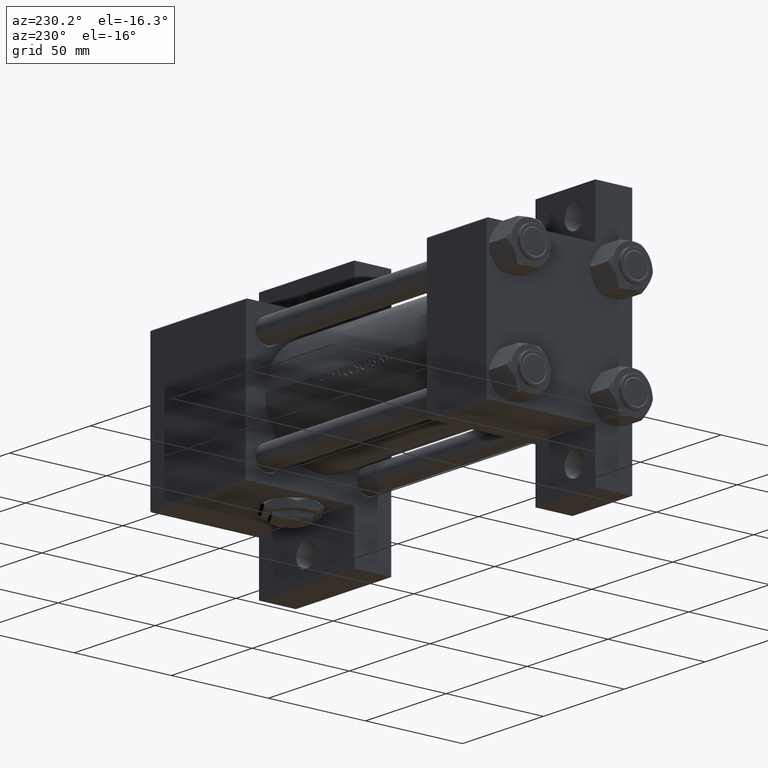
[diagram: clean part render]
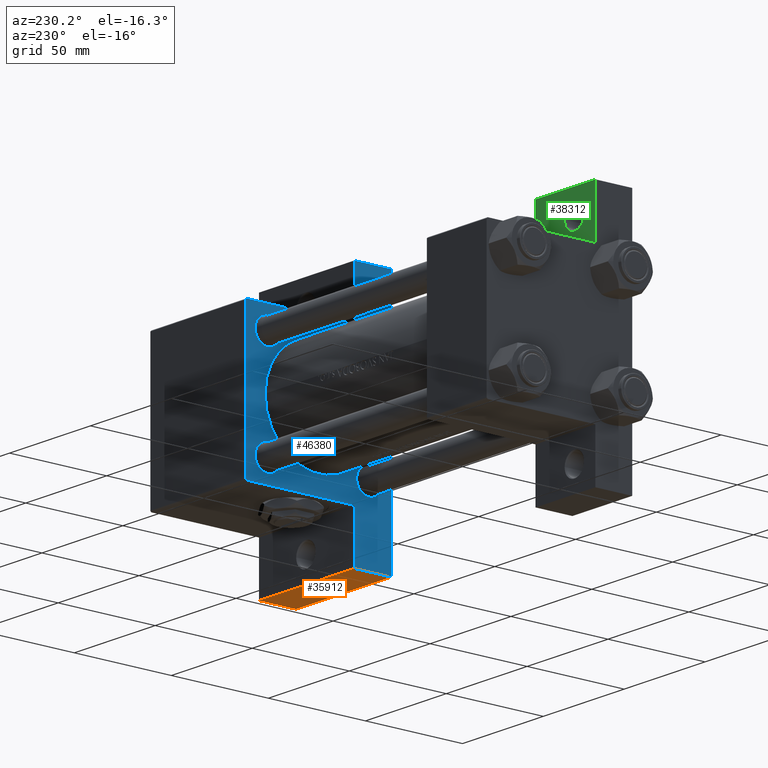
[diagram: same view with three faces highlighted in distinct colors, each labeled with its STEP entity id]
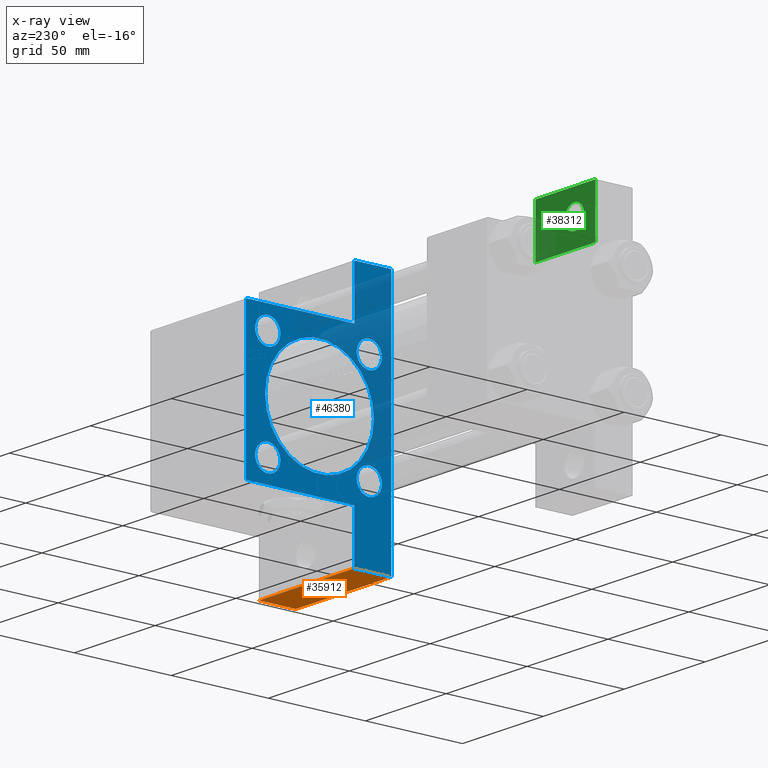
[diagram: x-ray of the same camera — body ghosted, the three highlighted faces saturated]
A machine part, auxiliary view with three faces highlighted in distinct colors.
The next image is the same camera in x-ray (body ghosted, the three faces saturated) — at least one of them is partly hidden behind the body in this view.
Their STEP definitions:

[orange] entity #35912 — the highlighted planar face has unit normal (-0, 0, -1).
#4341 = CARTESIAN_POINT ( 'NONE',  ( 149.0000000000000284, 63.49999999999997158, -37.50000000000000000 ) ) ;
#5514 = VERTEX_POINT ( 'NONE', #48262 ) ;
#8562 = VECTOR ( 'NONE', #25343, 1000.000000000000000 ) ;
#9146 = ORIENTED_EDGE ( 'NONE', *, *, #9825, .T. ) ;
#9825 = EDGE_CURVE ( 'NONE', #5514, #40161, #46608, .T. ) ;
#10914 = EDGE_LOOP ( 'NONE', ( #11044, #13359, #38487, #9146 ) ) ;
#11044 = ORIENTED_EDGE ( 'NONE', *, *, #47010, .F. ) ;
#13359 = ORIENTED_EDGE ( 'NONE', *, *, #39888, .F. ) ;
#13534 = VECTOR ( 'NONE', #40833, 1000.000000000000000 ) ;
#13885 = LINE ( 'NONE', #29067, #8562 ) ;
#15885 = AXIS2_PLACEMENT_3D ( 'NONE', #27196, #16479, #42873 ) ;
#16445 = VERTEX_POINT ( 'NONE', #35984 ) ;
#16479 = DIRECTION ( 'NONE',  ( -4.704334850106593822E-16, 1.000000000000000000, 0.000000000000000000 ) ) ;
#18154 = CARTESIAN_POINT ( 'NONE',  ( 149.0000000000000284, 63.49999999999997158, -18.50000000000000000 ) ) ;
#19268 = DIRECTION ( 'NONE',  ( 1.000000000000000000, 4.704334850106593822E-16, 0.000000000000000000 ) ) ;
#21293 = VERTEX_POINT ( 'NONE', #4341 ) ;
#22122 = VECTOR ( 'NONE', #27429, 1000.000000000000000 ) ;
#23945 = PLANE ( 'NONE',  #15885 ) ;
#25343 = DIRECTION ( 'NONE',  ( 1.000000000000000000, 4.704334850106593822E-16, 0.000000000000000000 ) ) ;
#27196 = CARTESIAN_POINT ( 'NONE',  ( 149.0000000000000284, 63.49999999999997158, -18.50000000000000000 ) ) ;
#27429 = DIRECTION ( 'NONE',  ( 0.000000000000000000, 0.000000000000000000, -1.000000000000000000 ) ) ;
#29067 = CARTESIAN_POINT ( 'NONE',  ( 149.0000000000000284, 63.49999999999997158, -18.50000000000000000 ) ) ;
#29984 = EDGE_CURVE ( 'NONE', #16445, #5514, #13885, .T. ) ;
#30936 = FACE_OUTER_BOUND ( 'NONE', #10914, .T. ) ;
#33712 = LINE ( 'NONE', #41186, #48795 ) ;
#35912 = ADVANCED_FACE ( 'NONE', ( #30936 ), #23945, .T. ) ;
#35984 = CARTESIAN_POINT ( 'NONE',  ( 149.0000000000000284, 63.49999999999997158, -18.50000000000000000 ) ) ;
#37782 = CARTESIAN_POINT ( 'NONE',  ( 208.0000000000000568, 63.50000000000000000, -37.50000000000000000 ) ) ;
#38487 = ORIENTED_EDGE ( 'NONE', *, *, #29984, .T. ) ;
#39611 = CARTESIAN_POINT ( 'NONE',  ( 208.0000000000000568, 63.50000000000000000, -18.50000000000000000 ) ) ;
#39888 = EDGE_CURVE ( 'NONE', #16445, #21293, #44561, .T. ) ;
#40161 = VERTEX_POINT ( 'NONE', #37782 ) ;
#40833 = DIRECTION ( 'NONE',  ( 0.000000000000000000, 0.000000000000000000, -1.000000000000000000 ) ) ;
#41186 = CARTESIAN_POINT ( 'NONE',  ( 149.0000000000000284, 63.49999999999997158, -37.50000000000000000 ) ) ;
#42873 = DIRECTION ( 'NONE',  ( -1.000000000000000000, -4.704334850106593822E-16, 0.000000000000000000 ) ) ;
#44561 = LINE ( 'NONE', #18154, #13534 ) ;
#46608 = LINE ( 'NONE', #39611, #22122 ) ;
#47010 = EDGE_CURVE ( 'NONE', #21293, #40161, #33712, .T. ) ;
#48262 = CARTESIAN_POINT ( 'NONE',  ( 208.0000000000000568, 63.50000000000000000, -18.50000000000000000 ) ) ;
#48795 = VECTOR ( 'NONE', #19268, 1000.000000000000000 ) ;

[blue] entity #46380 — the highlighted planar face has unit normal (-1, 0, 0).
#112 = DIRECTION ( 'NONE',  ( 0.000000000000000000, 0.000000000000000000, -1.000000000000000000 ) ) ;
#359 = CARTESIAN_POINT ( 'NONE',  ( 149.0000000000000000, 37.50000000000000000, 36.99999999999999289 ) ) ;
#525 = AXIS2_PLACEMENT_3D ( 'NONE', #3155, #18592, #18344 ) ;
#754 = ORIENTED_EDGE ( 'NONE', *, *, #12640, .T. ) ;
#1087 = DIRECTION ( 'NONE',  ( 0.000000000000000000, 0.000000000000000000, -1.000000000000000000 ) ) ;
#2093 = ORIENTED_EDGE ( 'NONE', *, *, #31912, .T. ) ;
#2185 = AXIS2_PLACEMENT_3D ( 'NONE', #7061, #6813, #22017 ) ;
#2479 = ORIENTED_EDGE ( 'NONE', *, *, #25837, .T. ) ;
#2693 = DIRECTION ( 'NONE',  ( 1.067522139062651657E-15, 1.000000000000000000, -0.000000000000000000 ) ) ;
#3155 = CARTESIAN_POINT ( 'NONE',  ( 149.0000000000000000, -26.14999999999999147, 26.15000000000000924 ) ) ;
#4090 = CIRCLE ( 'NONE', #14406, 6.500000000000008882 ) ;
#4117 = ORIENTED_EDGE ( 'NONE', *, *, #20951, .F. ) ;
#4187 = DIRECTION ( 'NONE',  ( 0.000000000000000000, 0.000000000000000000, 1.000000000000000000 ) ) ;
#4324 = DIRECTION ( 'NONE',  ( 1.000000000000000000, 0.000000000000000000, 0.000000000000000000 ) ) ;
#4341 = CARTESIAN_POINT ( 'NONE',  ( 149.0000000000000284, 63.49999999999997158, -37.50000000000000000 ) ) ;
#4426 = FACE_BOUND ( 'NONE', #15280, .T. ) ;
#4962 = EDGE_CURVE ( 'NONE', #28140, #40892, #9372, .T. ) ;
#5438 = CARTESIAN_POINT ( 'NONE',  ( 149.0000000000000000, -63.50000000000000000, -37.50000000000000000 ) ) ;
#5884 = EDGE_CURVE ( 'NONE', #7485, #12511, #46782, .T. ) ;
#6051 = DIRECTION ( 'NONE',  ( 0.000000000000000000, -9.251858538542972814E-17, -1.000000000000000000 ) ) ;
#6449 = EDGE_LOOP ( 'NONE', ( #10567, #2093 ) ) ;
#6750 = ORIENTED_EDGE ( 'NONE', *, *, #18879, .T. ) ;
#6813 = DIRECTION ( 'NONE',  ( 1.000000000000000000, 0.000000000000000000, -0.000000000000000000 ) ) ;
#6905 = DIRECTION ( 'NONE',  ( -0.000000000000000000, 0.7071067811865671127, 0.7071067811865279218 ) ) ;
#7061 = CARTESIAN_POINT ( 'NONE',  ( 149.0000000000000000, 26.14999999999999858, 26.15000000000000213 ) ) ;
#7304 = VERTEX_POINT ( 'NONE', #17937 ) ;
#7345 = ORIENTED_EDGE ( 'NONE', *, *, #7746, .T. ) ;
#7372 = AXIS2_PLACEMENT_3D ( 'NONE', #31094, #7930, #4187 ) ;
#7434 = FACE_BOUND ( 'NONE', #18503, .T. ) ;
#7485 = VERTEX_POINT ( 'NONE', #21922 ) ;
#7580 = CARTESIAN_POINT ( 'NONE',  ( 149.0000000000000000, 37.50000000000000000, -18.50000000000000355 ) ) ;
#7592 = LINE ( 'NONE', #11582, #29479 ) ;
#7746 = EDGE_CURVE ( 'NONE', #33460, #48551, #48761, .T. ) ;
#7930 = DIRECTION ( 'NONE',  ( -1.000000000000000000, -0.000000000000000000, 0.000000000000000000 ) ) ;
#7949 = CIRCLE ( 'NONE', #14317, 28.00000000000000000 ) ;
#8236 = EDGE_CURVE ( 'NONE', #12511, #7485, #47523, .T. ) ;
#8699 = LINE ( 'NONE', #39082, #38302 ) ;
#9372 = CIRCLE ( 'NONE', #45951, 6.500000000000008882 ) ;
#9557 = LINE ( 'NONE', #29453, #28854 ) ;
#10363 = ORIENTED_EDGE ( 'NONE', *, *, #41971, .T. ) ;
#10410 = DIRECTION ( 'NONE',  ( 1.000000000000000000, 0.000000000000000000, 0.000000000000000000 ) ) ;
#10567 = ORIENTED_EDGE ( 'NONE', *, *, #40472, .T. ) ;
#10838 = DIRECTION ( 'NONE',  ( 0.000000000000000000, 1.000000000000000000, 0.000000000000000000 ) ) ;
#11582 = CARTESIAN_POINT ( 'NONE',  ( 149.0000000000000000, -63.50000000000000000, -18.50000000000000000 ) ) ;
#11653 = DIRECTION ( 'NONE',  ( 1.000000000000000000, 0.000000000000000000, -0.000000000000000000 ) ) ;
#12361 = CARTESIAN_POINT ( 'NONE',  ( 149.0000000000000000, -37.00000000000000000, 37.49999999999997868 ) ) ;
#12467 = DIRECTION ( 'NONE',  ( 0.000000000000000000, 0.000000000000000000, 1.000000000000000000 ) ) ;
#12511 = VERTEX_POINT ( 'NONE', #39835 ) ;
#12640 = EDGE_CURVE ( 'NONE', #46322, #21404, #30160, .T. ) ;
#13394 = CIRCLE ( 'NONE', #27721, 28.00000000000000000 ) ;
#13534 = VECTOR ( 'NONE', #40833, 1000.000000000000000 ) ;
#13865 = VERTEX_POINT ( 'NONE', #40921 ) ;
#13988 = EDGE_CURVE ( 'NONE', #33463, #16445, #40549, .T. ) ;
#14280 = DIRECTION ( 'NONE',  ( 1.000000000000000000, 0.000000000000000000, -0.000000000000000000 ) ) ;
#14317 = AXIS2_PLACEMENT_3D ( 'NONE', #15790, #4324, #1087 ) ;
#14406 = AXIS2_PLACEMENT_3D ( 'NONE', #27690, #23458, #20218 ) ;
#15280 = EDGE_LOOP ( 'NONE', ( #16748, #22757 ) ) ;
#15400 = CARTESIAN_POINT ( 'NONE',  ( 149.0000000000000000, -26.14999999999999147, 26.15000000000000924 ) ) ;
#15438 = DIRECTION ( 'NONE',  ( 0.000000000000000000, 0.000000000000000000, -1.000000000000000000 ) ) ;
#15450 = EDGE_CURVE ( 'NONE', #48117, #39407, #7592, .T. ) ;
#15790 = CARTESIAN_POINT ( 'NONE',  ( 149.0000000000000000, 0.000000000000000000, -0.5000000000000004441 ) ) ;
#16445 = VERTEX_POINT ( 'NONE', #35984 ) ;
#16748 = ORIENTED_EDGE ( 'NONE', *, *, #4962, .T. ) ;
#16755 = EDGE_LOOP ( 'NONE', ( #44194, #46454, #10363, #44441, #22688, #44671, #4117, #48954, #43200, #7345 ) ) ;
#17039 = DIRECTION ( 'NONE',  ( 0.000000000000000000, 0.7071067811865279218, -0.7071067811865671127 ) ) ;
#17856 = CARTESIAN_POINT ( 'NONE',  ( 149.0000000000000000, 37.50000000000000000, 37.49999999999999289 ) ) ;
#17937 = CARTESIAN_POINT ( 'NONE',  ( 149.0000000000000000, 0.000000000000000000, 27.50000000000000000 ) ) ;
#18009 = CIRCLE ( 'NONE', #525, 6.500000000000008882 ) ;
#18154 = CARTESIAN_POINT ( 'NONE',  ( 149.0000000000000284, 63.49999999999997158, -18.50000000000000000 ) ) ;
#18287 = DIRECTION ( 'NONE',  ( 1.000000000000000000, 0.000000000000000000, -0.000000000000000000 ) ) ;
#18327 = DIRECTION ( 'NONE',  ( 0.000000000000000000, 0.000000000000000000, -1.000000000000000000 ) ) ;
#18344 = DIRECTION ( 'NONE',  ( 0.000000000000000000, 0.000000000000000000, 1.000000000000000000 ) ) ;
#18503 = EDGE_LOOP ( 'NONE', ( #40142, #24035 ) ) ;
#18592 = DIRECTION ( 'NONE',  ( 1.000000000000000000, 0.000000000000000000, -0.000000000000000000 ) ) ;
#18879 = EDGE_CURVE ( 'NONE', #31321, #38375, #31200, .T. ) ;
#18922 = EDGE_CURVE ( 'NONE', #24790, #20282, #48157, .T. ) ;
#19025 = AXIS2_PLACEMENT_3D ( 'NONE', #15400, #11653, #33576 ) ;
#19545 = CIRCLE ( 'NONE', #45774, 6.500000000000008882 ) ;
#19929 = DIRECTION ( 'NONE',  ( 0.000000000000000000, -1.000000000000000000, 0.000000000000000000 ) ) ;
#20218 = DIRECTION ( 'NONE',  ( 0.000000000000000000, 0.000000000000000000, 1.000000000000000000 ) ) ;
#20282 = VERTEX_POINT ( 'NONE', #359 ) ;
#20642 = DIRECTION ( 'NONE',  ( 0.000000000000000000, -1.000000000000000000, -1.850371707708594316E-16 ) ) ;
#20951 = EDGE_CURVE ( 'NONE', #48117, #33138, #41584, .T. ) ;
#21001 = CARTESIAN_POINT ( 'NONE',  ( 149.0000000000000000, 26.14999999999999858, -19.64999999999999503 ) ) ;
#21083 = EDGE_CURVE ( 'NONE', #24790, #48551, #8699, .T. ) ;
#21293 = VERTEX_POINT ( 'NONE', #4341 ) ;
#21404 = VERTEX_POINT ( 'NONE', #34177 ) ;
#21579 = EDGE_CURVE ( 'NONE', #40892, #28140, #4090, .T. ) ;
#21922 = CARTESIAN_POINT ( 'NONE',  ( 149.0000000000000000, 26.14999999999999858, 19.65000000000000568 ) ) ;
#22017 = DIRECTION ( 'NONE',  ( 0.000000000000000000, 0.000000000000000000, 1.000000000000000000 ) ) ;
#22393 = DIRECTION ( 'NONE',  ( 1.000000000000000000, 0.000000000000000000, -0.000000000000000000 ) ) ;
#22634 = FACE_BOUND ( 'NONE', #6449, .T. ) ;
#22688 = ORIENTED_EDGE ( 'NONE', *, *, #39888, .T. ) ;
#22757 = ORIENTED_EDGE ( 'NONE', *, *, #21579, .T. ) ;
#23023 = DIRECTION ( 'NONE',  ( 0.000000000000000000, 0.000000000000000000, 1.000000000000000000 ) ) ;
#23274 = VECTOR ( 'NONE', #19929, 1000.000000000000000 ) ;
#23458 = DIRECTION ( 'NONE',  ( 1.000000000000000000, 0.000000000000000000, -0.000000000000000000 ) ) ;
#23513 = CARTESIAN_POINT ( 'NONE',  ( 149.0000000000000000, 26.14999999999999858, -26.15000000000000213 ) ) ;
#24035 = ORIENTED_EDGE ( 'NONE', *, *, #5884, .T. ) ;
#24761 = VECTOR ( 'NONE', #15438, 1000.000000000000000 ) ;
#24790 = VERTEX_POINT ( 'NONE', #31465 ) ;
#25411 = CARTESIAN_POINT ( 'NONE',  ( 149.0000000000000000, -63.50000000000000000, -18.50000000000000000 ) ) ;
#25489 = CARTESIAN_POINT ( 'NONE',  ( 149.0000000000000000, 37.25000000000103739, 37.24999999999896971 ) ) ;
#25837 = EDGE_CURVE ( 'NONE', #38375, #31321, #19545, .T. ) ;
#25849 = CARTESIAN_POINT ( 'NONE',  ( 149.0000000000000000, -37.24999999999896261, 37.25000000000102318 ) ) ;
#27073 = CARTESIAN_POINT ( 'NONE',  ( 149.0000000000000000, -26.14999999999999147, -32.65000000000002700 ) ) ;
#27519 = EDGE_CURVE ( 'NONE', #21404, #46322, #18009, .T. ) ;
#27661 = DIRECTION ( 'NONE',  ( 1.000000000000000000, 0.000000000000000000, -0.000000000000000000 ) ) ;
#27690 = CARTESIAN_POINT ( 'NONE',  ( 149.0000000000000000, -26.14999999999999147, -26.15000000000000924 ) ) ;
#27721 = AXIS2_PLACEMENT_3D ( 'NONE', #38217, #10410, #112 ) ;
#28140 = VERTEX_POINT ( 'NONE', #47312 ) ;
#28854 = VECTOR ( 'NONE', #6051, 1000.000000000000000 ) ;
#29238 = VECTOR ( 'NONE', #6905, 1000.000000000000000 ) ;
#29453 = CARTESIAN_POINT ( 'NONE',  ( 149.0000000000000000, -37.50000000000000000, 37.49999999999997868 ) ) ;
#29479 = VECTOR ( 'NONE', #10838, 1000.000000000000000 ) ;
#29484 = VECTOR ( 'NONE', #18327, 1000.000000000000000 ) ;
#29979 = ORIENTED_EDGE ( 'NONE', *, *, #27519, .T. ) ;
#30002 = CARTESIAN_POINT ( 'NONE',  ( 149.0000000000000000, -37.50000000000000000, 37.00000000000000711 ) ) ;
#30160 = CIRCLE ( 'NONE', #19025, 6.500000000000008882 ) ;
#30603 = DIRECTION ( 'NONE',  ( 0.000000000000000000, 0.000000000000000000, 1.000000000000000000 ) ) ;
#31094 = CARTESIAN_POINT ( 'NONE',  ( 149.0000000000000000, 0.000000000000000000, 0.000000000000000000 ) ) ;
#31200 = CIRCLE ( 'NONE', #43925, 6.500000000000008882 ) ;
#31321 = VERTEX_POINT ( 'NONE', #21001 ) ;
#31465 = CARTESIAN_POINT ( 'NONE',  ( 149.0000000000000000, 37.00000000000002842, 37.49999999999999289 ) ) ;
#31912 = EDGE_CURVE ( 'NONE', #13865, #7304, #13394, .T. ) ;
#33138 = VERTEX_POINT ( 'NONE', #5438 ) ;
#33460 = VERTEX_POINT ( 'NONE', #30002 ) ;
#33463 = VERTEX_POINT ( 'NONE', #7580 ) ;
#33576 = DIRECTION ( 'NONE',  ( 0.000000000000000000, 0.000000000000000000, 1.000000000000000000 ) ) ;
#34177 = CARTESIAN_POINT ( 'NONE',  ( 149.0000000000000000, -26.14999999999999147, 32.65000000000001990 ) ) ;
#34379 = LINE ( 'NONE', #38611, #23274 ) ;
#34850 = CARTESIAN_POINT ( 'NONE',  ( 149.0000000000000000, -63.50000000000000000, -18.50000000000000000 ) ) ;
#35076 = FACE_BOUND ( 'NONE', #43801, .T. ) ;
#35984 = CARTESIAN_POINT ( 'NONE',  ( 149.0000000000000284, 63.49999999999997158, -18.50000000000000000 ) ) ;
#36329 = CARTESIAN_POINT ( 'NONE',  ( 149.0000000000000284, 63.49999999999997158, -18.50000000000000000 ) ) ;
#36438 = AXIS2_PLACEMENT_3D ( 'NONE', #41699, #18287, #23023 ) ;
#36796 = LINE ( 'NONE', #17856, #29484 ) ;
#38135 = CARTESIAN_POINT ( 'NONE',  ( 149.0000000000000000, 26.14999999999999858, -26.15000000000000213 ) ) ;
#38217 = CARTESIAN_POINT ( 'NONE',  ( 149.0000000000000000, 0.000000000000000000, -0.5000000000000004441 ) ) ;
#38302 = VECTOR ( 'NONE', #20642, 1000.000000000000000 ) ;
#38375 = VERTEX_POINT ( 'NONE', #43017 ) ;
#38611 = CARTESIAN_POINT ( 'NONE',  ( 149.0000000000000000, 37.50000000000000000, -37.50000000000000000 ) ) ;
#38805 = FACE_OUTER_BOUND ( 'NONE', #16755, .T. ) ;
#39082 = CARTESIAN_POINT ( 'NONE',  ( 149.0000000000000000, 37.50000000000000000, 37.49999999999999289 ) ) ;
#39407 = VERTEX_POINT ( 'NONE', #45724 ) ;
#39835 = CARTESIAN_POINT ( 'NONE',  ( 149.0000000000000000, 26.14999999999999858, 32.65000000000000568 ) ) ;
#39888 = EDGE_CURVE ( 'NONE', #16445, #21293, #44561, .T. ) ;
#40142 = ORIENTED_EDGE ( 'NONE', *, *, #8236, .T. ) ;
#40431 = DIRECTION ( 'NONE',  ( 0.000000000000000000, 0.000000000000000000, 1.000000000000000000 ) ) ;
#40472 = EDGE_CURVE ( 'NONE', #7304, #13865, #7949, .T. ) ;
#40549 = LINE ( 'NONE', #36329, #44523 ) ;
#40833 = DIRECTION ( 'NONE',  ( 0.000000000000000000, 0.000000000000000000, -1.000000000000000000 ) ) ;
#40892 = VERTEX_POINT ( 'NONE', #27073 ) ;
#40921 = CARTESIAN_POINT ( 'NONE',  ( 149.0000000000000000, 3.429011037612589276E-15, -28.50000000000000000 ) ) ;
#41055 = CARTESIAN_POINT ( 'NONE',  ( 149.0000000000000000, -26.14999999999999147, 19.65000000000000213 ) ) ;
#41584 = LINE ( 'NONE', #34850, #24761 ) ;
#41699 = CARTESIAN_POINT ( 'NONE',  ( 149.0000000000000000, 26.14999999999999858, 26.15000000000000213 ) ) ;
#41799 = CARTESIAN_POINT ( 'NONE',  ( 149.0000000000000000, -26.14999999999999147, -26.15000000000000924 ) ) ;
#41971 = EDGE_CURVE ( 'NONE', #20282, #33463, #36796, .T. ) ;
#42299 = FACE_BOUND ( 'NONE', #43010, .T. ) ;
#43010 = EDGE_LOOP ( 'NONE', ( #6750, #2479 ) ) ;
#43017 = CARTESIAN_POINT ( 'NONE',  ( 149.0000000000000000, 26.14999999999999858, -32.65000000000001279 ) ) ;
#43107 = VECTOR ( 'NONE', #17039, 1000.000000000000000 ) ;
#43200 = ORIENTED_EDGE ( 'NONE', *, *, #48911, .F. ) ;
#43801 = EDGE_LOOP ( 'NONE', ( #29979, #754 ) ) ;
#43925 = AXIS2_PLACEMENT_3D ( 'NONE', #23513, #14280, #40431 ) ;
#44194 = ORIENTED_EDGE ( 'NONE', *, *, #21083, .F. ) ;
#44441 = ORIENTED_EDGE ( 'NONE', *, *, #13988, .T. ) ;
#44523 = VECTOR ( 'NONE', #2693, 1000.000000000000000 ) ;
#44561 = LINE ( 'NONE', #18154, #13534 ) ;
#44671 = ORIENTED_EDGE ( 'NONE', *, *, #45173, .T. ) ;
#45173 = EDGE_CURVE ( 'NONE', #21293, #33138, #34379, .T. ) ;
#45283 = PLANE ( 'NONE',  #7372 ) ;
#45724 = CARTESIAN_POINT ( 'NONE',  ( 149.0000000000000000, -37.50000000000000000, -18.50000000000000000 ) ) ;
#45774 = AXIS2_PLACEMENT_3D ( 'NONE', #38135, #27661, #12467 ) ;
#45951 = AXIS2_PLACEMENT_3D ( 'NONE', #41799, #22393, #30603 ) ;
#46322 = VERTEX_POINT ( 'NONE', #41055 ) ;
#46380 = ADVANCED_FACE ( 'NONE', ( #35076, #7434, #42299, #4426, #22634, #38805 ), #45283, .T. ) ;
#46454 = ORIENTED_EDGE ( 'NONE', *, *, #18922, .T. ) ;
#46782 = CIRCLE ( 'NONE', #36438, 6.499999999999995559 ) ;
#47312 = CARTESIAN_POINT ( 'NONE',  ( 149.0000000000000000, -26.14999999999999147, -19.65000000000000213 ) ) ;
#47523 = CIRCLE ( 'NONE', #2185, 6.499999999999995559 ) ;
#48117 = VERTEX_POINT ( 'NONE', #25411 ) ;
#48157 = LINE ( 'NONE', #25489, #43107 ) ;
#48551 = VERTEX_POINT ( 'NONE', #12361 ) ;
#48761 = LINE ( 'NONE', #25849, #29238 ) ;
#48911 = EDGE_CURVE ( 'NONE', #33460, #39407, #9557, .T. ) ;
#48954 = ORIENTED_EDGE ( 'NONE', *, *, #15450, .T. ) ;

[green] entity #38312 — the highlighted planar face has unit normal (0, -1, 0).
#1621 = CARTESIAN_POINT ( 'NONE',  ( 12.99999999999999822, -51.00000000000002132, -18.50000000000000000 ) ) ;
#2243 = DIRECTION ( 'NONE',  ( -1.000000000000000000, 0.000000000000000000, 0.000000000000000000 ) ) ;
#5277 = EDGE_LOOP ( 'NONE', ( #16152, #20415 ) ) ;
#5545 = VERTEX_POINT ( 'NONE', #36814 ) ;
#6976 = DIRECTION ( 'NONE',  ( -1.000000000000000000, 0.000000000000000000, -0.000000000000000000 ) ) ;
#8070 = LINE ( 'NONE', #23997, #19391 ) ;
#8654 = PLANE ( 'NONE',  #26977 ) ;
#9023 = EDGE_CURVE ( 'NONE', #16683, #26363, #31775, .T. ) ;
#9350 = DIRECTION ( 'NONE',  ( 1.000000000000000000, 0.000000000000000000, 0.000000000000000000 ) ) ;
#10033 = DIRECTION ( 'NONE',  ( -1.000000000000000000, 0.000000000000000000, 0.000000000000000000 ) ) ;
#10683 = DIRECTION ( 'NONE',  ( 4.278042683914906889E-17, -1.000000000000000000, 0.000000000000000000 ) ) ;
#11935 = CIRCLE ( 'NONE', #19897, 5.999499999999994060 ) ;
#14212 = VECTOR ( 'NONE', #31256, 1000.000000000000000 ) ;
#15051 = CARTESIAN_POINT ( 'NONE',  ( 18.99949999999999051, -51.00000000000002132, -18.50000000000000000 ) ) ;
#15631 = ORIENTED_EDGE ( 'NONE', *, *, #47991, .T. ) ;
#16061 = LINE ( 'NONE', #25428, #14212 ) ;
#16152 = ORIENTED_EDGE ( 'NONE', *, *, #40562, .T. ) ;
#16638 = CARTESIAN_POINT ( 'NONE',  ( 37.00000000000000000, -63.50000000000000000, -18.50000000000000355 ) ) ;
#16683 = VERTEX_POINT ( 'NONE', #28190 ) ;
#17069 = DIRECTION ( 'NONE',  ( 0.000000000000000000, 0.000000000000000000, -1.000000000000000000 ) ) ;
#18146 = CARTESIAN_POINT ( 'NONE',  ( 3.977209754999744250E-16, -63.49999999999998579, -18.50000000000000355 ) ) ;
#18385 = LINE ( 'NONE', #18146, #22495 ) ;
#18615 = EDGE_LOOP ( 'NONE', ( #42035, #15631, #22754, #22945 ) ) ;
#19136 = CIRCLE ( 'NONE', #42183, 5.999499999999994060 ) ;
#19391 = VECTOR ( 'NONE', #2243, 1000.000000000000000 ) ;
#19897 = AXIS2_PLACEMENT_3D ( 'NONE', #1621, #17069, #25279 ) ;
#20415 = ORIENTED_EDGE ( 'NONE', *, *, #39568, .T. ) ;
#22179 = CARTESIAN_POINT ( 'NONE',  ( 0.000000000000000000, 0.000000000000000000, -18.50000000000000000 ) ) ;
#22495 = VECTOR ( 'NONE', #10683, 1000.000000000000000 ) ;
#22754 = ORIENTED_EDGE ( 'NONE', *, *, #46321, .T. ) ;
#22945 = ORIENTED_EDGE ( 'NONE', *, *, #9023, .T. ) ;
#23997 = CARTESIAN_POINT ( 'NONE',  ( -7.145701223179000102E-16, -37.50000000000001421, -18.49999999999999645 ) ) ;
#25279 = DIRECTION ( 'NONE',  ( -1.000000000000000000, 0.000000000000000000, 0.000000000000000000 ) ) ;
#25428 = CARTESIAN_POINT ( 'NONE',  ( 37.00000000000000000, -63.49999999999998579, -18.50000000000000355 ) ) ;
#26363 = VERTEX_POINT ( 'NONE', #16638 ) ;
#26977 = AXIS2_PLACEMENT_3D ( 'NONE', #22179, #42525, #6976 ) ;
#28190 = CARTESIAN_POINT ( 'NONE',  ( 3.977209754999747208E-16, -63.50000000000000000, -18.50000000000000355 ) ) ;
#28448 = VECTOR ( 'NONE', #9350, 1000.000000000000000 ) ;
#28461 = DIRECTION ( 'NONE',  ( 0.000000000000000000, 0.000000000000000000, -1.000000000000000000 ) ) ;
#28737 = CARTESIAN_POINT ( 'NONE',  ( 37.00000000000000000, -37.50000000000000000, -18.50000000000000355 ) ) ;
#31256 = DIRECTION ( 'NONE',  ( -0.000000000000000000, 1.000000000000000000, 0.000000000000000000 ) ) ;
#31329 = FACE_OUTER_BOUND ( 'NONE', #18615, .T. ) ;
#31775 = LINE ( 'NONE', #46970, #28448 ) ;
#34500 = VERTEX_POINT ( 'NONE', #28737 ) ;
#36814 = CARTESIAN_POINT ( 'NONE',  ( -7.145701223179004046E-16, -37.50000000000000711, -18.50000000000000355 ) ) ;
#36828 = EDGE_CURVE ( 'NONE', #26363, #34500, #16061, .T. ) ;
#37370 = FACE_BOUND ( 'NONE', #5277, .T. ) ;
#38312 = ADVANCED_FACE ( 'NONE', ( #37370, #31329 ), #8654, .F. ) ;
#39568 = EDGE_CURVE ( 'NONE', #41671, #43259, #11935, .T. ) ;
#40562 = EDGE_CURVE ( 'NONE', #43259, #41671, #19136, .T. ) ;
#41671 = VERTEX_POINT ( 'NONE', #41792 ) ;
#41792 = CARTESIAN_POINT ( 'NONE',  ( 7.000500000000003276, -51.00000000000002132, -18.50000000000000000 ) ) ;
#42035 = ORIENTED_EDGE ( 'NONE', *, *, #36828, .T. ) ;
#42183 = AXIS2_PLACEMENT_3D ( 'NONE', #44145, #28461, #10033 ) ;
#42525 = DIRECTION ( 'NONE',  ( 0.000000000000000000, 0.000000000000000000, -1.000000000000000000 ) ) ;
#43259 = VERTEX_POINT ( 'NONE', #15051 ) ;
#44145 = CARTESIAN_POINT ( 'NONE',  ( 12.99999999999999822, -51.00000000000002132, -18.50000000000000000 ) ) ;
#46321 = EDGE_CURVE ( 'NONE', #5545, #16683, #18385, .T. ) ;
#46970 = CARTESIAN_POINT ( 'NONE',  ( 3.977209754999747208E-16, -63.50000000000000000, -18.50000000000000355 ) ) ;
#47991 = EDGE_CURVE ( 'NONE', #34500, #5545, #8070, .T. ) ;